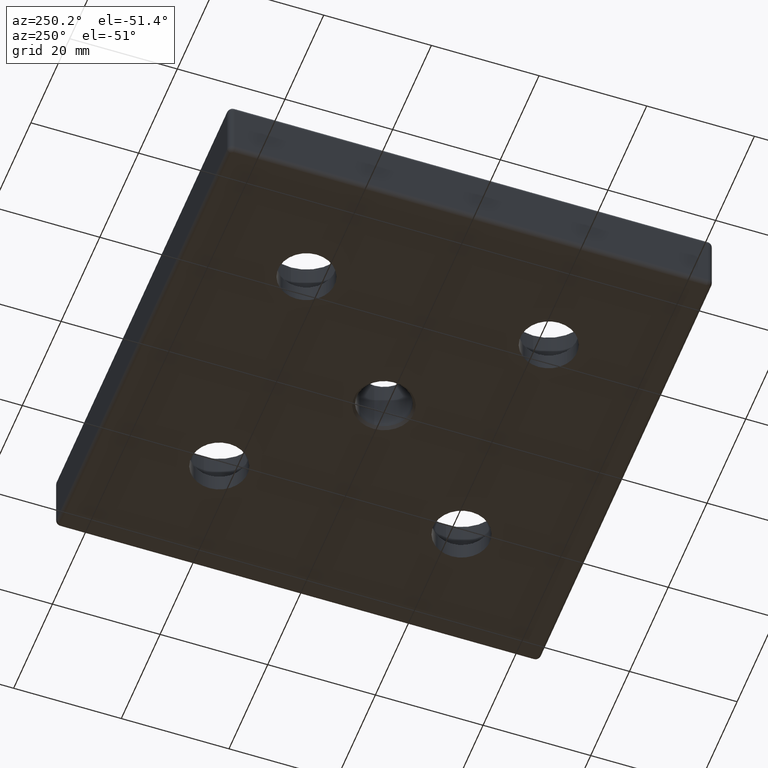
[diagram: clean part render]
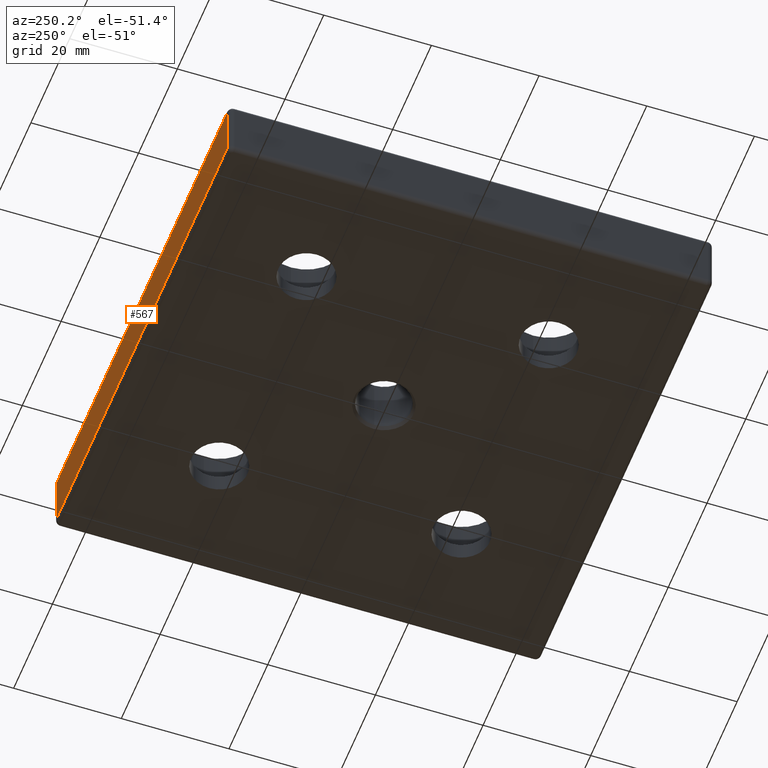
[diagram: same view with one face highlighted and labeled with its STEP entity id]
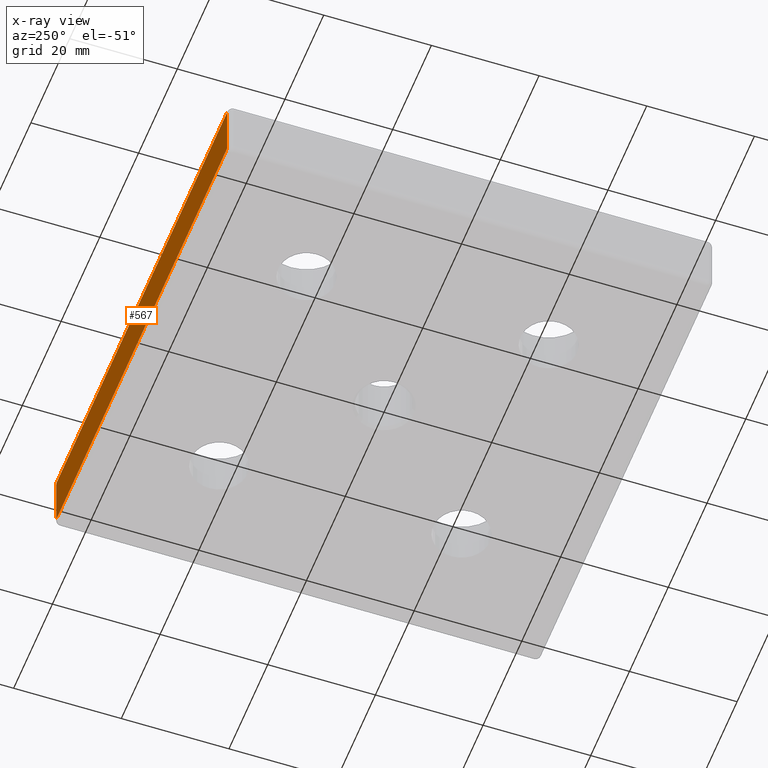
[diagram: x-ray of the same camera — body ghosted, the highlighted face saturated]
A machine part, auxiliary view. The second image highlights one B-rep face of the part: STEP entity #567.
The next image is the same camera in x-ray: the body ghosted, the highlighted face saturated — about 0% of this face is hidden behind the body in this view.
In plain terms, the highlighted planar face has unit normal (0, 1, 0).
Its self-contained STEP definition (entity closure, byte-faithful):
#33=LINE('',#967,#57);
#35=LINE('',#982,#59);
#37=LINE('',#985,#61);
#39=LINE('',#989,#63);
#57=VECTOR('',#796,10.);
#59=VECTOR('',#816,88.);
#61=VECTOR('',#820,10.);
#63=VECTOR('',#826,88.);
#79=PLANE('',#654);
#166=FACE_OUTER_BOUND('',#232,.T.);
#232=EDGE_LOOP('',(#518,#519,#520,#521));
#312=VERTEX_POINT('',#945);
#316=VERTEX_POINT('',#959);
#319=VERTEX_POINT('',#972);
#321=VERTEX_POINT('',#978);
#370=EDGE_CURVE('',#312,#316,#33,.T.);
#378=EDGE_CURVE('',#316,#321,#35,.T.);
#380=EDGE_CURVE('',#321,#319,#37,.T.);
#382=EDGE_CURVE('',#319,#312,#39,.T.);
#518=ORIENTED_EDGE('',*,*,#370,.F.);
#519=ORIENTED_EDGE('',*,*,#382,.F.);
#520=ORIENTED_EDGE('',*,*,#380,.F.);
#521=ORIENTED_EDGE('',*,*,#378,.F.);
#567=ADVANCED_FACE('',(#166),#79,.T.);
#654=AXIS2_PLACEMENT_3D('',#1004,#848,#849);
#796=DIRECTION('',(0.,0.,-1.));
#816=DIRECTION('',(1.,0.,0.));
#820=DIRECTION('',(0.,0.,1.));
#826=DIRECTION('',(-1.,0.,0.));
#848=DIRECTION('center_axis',(0.,1.,0.));
#849=DIRECTION('ref_axis',(-1.,0.,0.));
#945=CARTESIAN_POINT('',(-44.,45.,11.));
#959=CARTESIAN_POINT('',(-44.,45.,1.));
#967=CARTESIAN_POINT('',(-44.,45.,0.));
#972=CARTESIAN_POINT('',(44.,45.,11.));
#978=CARTESIAN_POINT('',(44.,45.,1.));
#982=CARTESIAN_POINT('',(22.5,45.,1.));
#985=CARTESIAN_POINT('',(44.,45.,0.));
#989=CARTESIAN_POINT('',(22.5,45.,11.));
#1004=CARTESIAN_POINT('Origin',(45.,45.,0.));